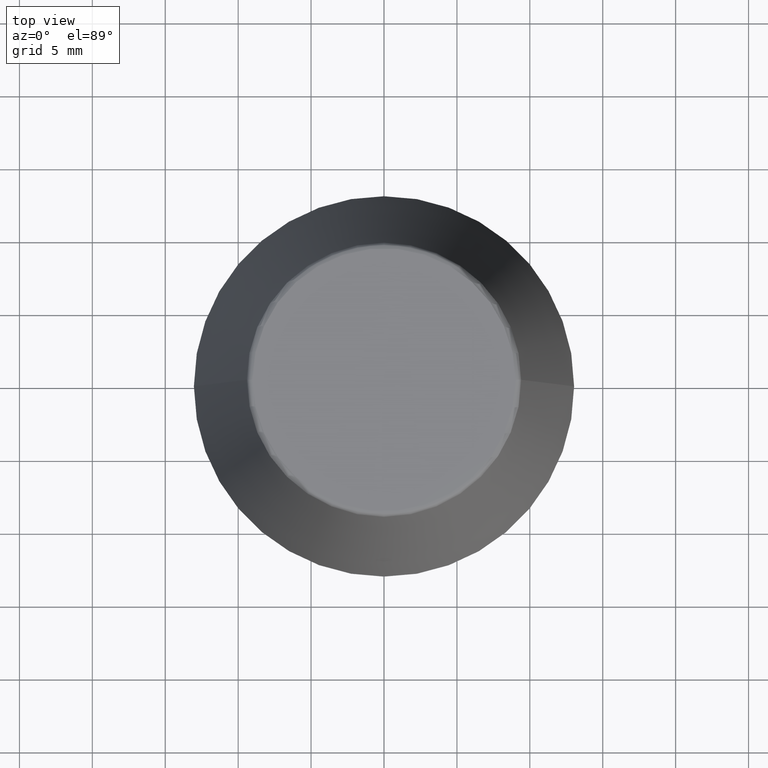
[diagram: clean part render]
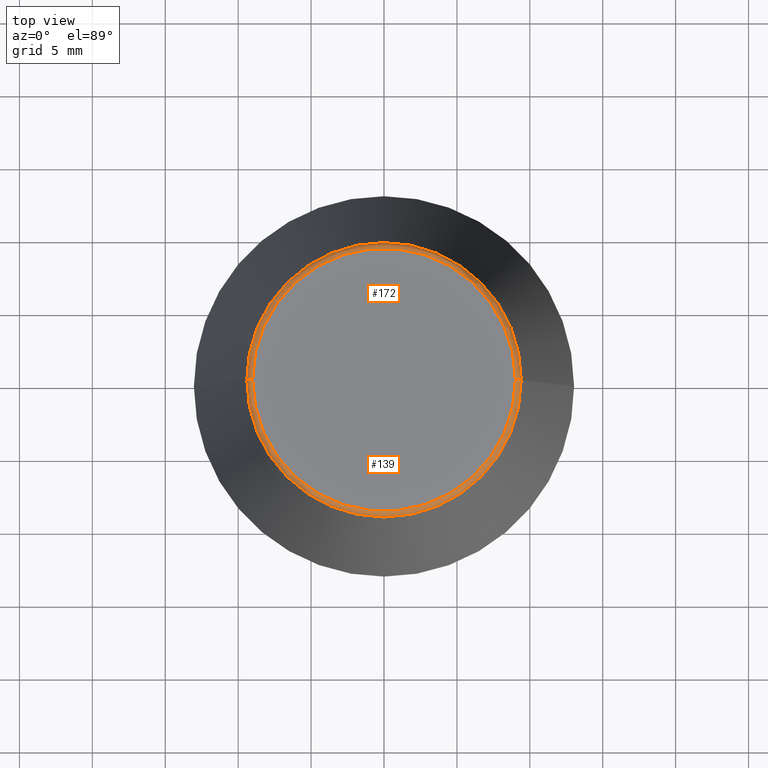
[diagram: same view with one multi-face feature highlighted, each face labeled with its STEP entity id]
A machine part, top view. The highlighted faces form ONE feature: a constant-radius fillet chain: 2 tangent blend faces with common blend radius 0.4 mm. The faces share edges in the B-rep.
Their STEP definitions:
[1] entity #172 (Torus):
#50 = ORIENTED_EDGE ( 'NONE', *, *, #319, .F. ) ;
#54 = CIRCLE ( 'NONE', #121, 0.4000000000000010200 ) ;
#59 = DIRECTION ( 'NONE',  ( -0.0000000000000000000, -0.0000000000000000000, 1.000000000000000000 ) ) ;
#61 = FACE_OUTER_BOUND ( 'NONE', #243, .T. ) ;
#63 = DIRECTION ( 'NONE',  ( 1.000000000000000000, 0.0000000000000000000, 0.0000000000000000000 ) ) ;
#75 = CIRCLE ( 'NONE', #245, 9.012603057622234500 ) ;
#76 = VERTEX_POINT ( 'NONE', #371 ) ;
#85 = ORIENTED_EDGE ( 'NONE', *, *, #282, .T. ) ;
#88 = CARTESIAN_POINT ( 'NONE',  ( 0.0000000000000000000, 0.0000000000000000000, 34.00000000000000000 ) ) ;
#95 = DIRECTION ( 'NONE',  ( -1.000000000000000000, 1.224646799147353200E-016, 0.0000000000000000000 ) ) ;
#108 = CARTESIAN_POINT ( 'NONE',  ( -9.408710285118862900, 0.0000000000000000000, 33.65566924038402900 ) ) ;
#109 = ORIENTED_EDGE ( 'NONE', *, *, #336, .T. ) ;
#113 = CARTESIAN_POINT ( 'NONE',  ( 9.012603057622234500, 0.0000000000000000000, 33.60000000000000100 ) ) ;
#115 = AXIS2_PLACEMENT_3D ( 'NONE', #113, #385, #185 ) ;
#121 = AXIS2_PLACEMENT_3D ( 'NONE', #189, #349, #95 ) ;
#124 = CARTESIAN_POINT ( 'NONE',  ( -9.012603057622234500, 1.127980121063915600E-015, 34.00000000000000000 ) ) ;
#138 = CARTESIAN_POINT ( 'NONE',  ( 0.0000000000000000000, 0.0000000000000000000, 33.65566924038402900 ) ) ;
#146 = AXIS2_PLACEMENT_3D ( 'NONE', #138, #205, #296 ) ;
#150 = CIRCLE ( 'NONE', #115, 0.3999999999999975800 ) ;
#154 = VERTEX_POINT ( 'NONE', #108 ) ;
#155 = CARTESIAN_POINT ( 'NONE',  ( 9.408710285118862900, 1.374377508408924700E-015, 33.65566924038402900 ) ) ;
#166 = DIRECTION ( 'NONE',  ( 1.000000000000000000, 0.0000000000000000000, 0.0000000000000000000 ) ) ;
#167 = DIRECTION ( 'NONE',  ( -0.0000000000000000000, -0.0000000000000000000, 1.000000000000000000 ) ) ;
#172 = ADVANCED_FACE ( 'NONE', ( #61 ), #200, .T. ) ;
#185 = DIRECTION ( 'NONE',  ( 0.0000000000000000000, 0.0000000000000000000, -1.000000000000000000 ) ) ;
#189 = CARTESIAN_POINT ( 'NONE',  ( -9.012603057622234500, 1.103725548650271700E-015, 33.60000000000000100 ) ) ;
#200 = TOROIDAL_SURFACE ( 'NONE', #242, 9.012603057622234500, 0.4000000000000009700 ) ;
#205 = DIRECTION ( 'NONE',  ( -0.0000000000000000000, -0.0000000000000000000, 1.000000000000000000 ) ) ;
#242 = AXIS2_PLACEMENT_3D ( 'NONE', #307, #167, #166 ) ;
#243 = EDGE_LOOP ( 'NONE', ( #85, #109, #50, #283 ) ) ;
#245 = AXIS2_PLACEMENT_3D ( 'NONE', #88, #59, #63 ) ;
#265 = VERTEX_POINT ( 'NONE', #155 ) ;
#282 = EDGE_CURVE ( 'NONE', #265, #154, #285, .T. ) ;
#283 = ORIENTED_EDGE ( 'NONE', *, *, #314, .F. ) ;
#285 = CIRCLE ( 'NONE', #146, 9.408710285118862900 ) ;
#296 = DIRECTION ( 'NONE',  ( 1.000000000000000000, 0.0000000000000000000, 0.0000000000000000000 ) ) ;
#307 = CARTESIAN_POINT ( 'NONE',  ( 0.0000000000000000000, 0.0000000000000000000, 33.60000000000000100 ) ) ;
#314 = EDGE_CURVE ( 'NONE', #265, #76, #150, .T. ) ;
#319 = EDGE_CURVE ( 'NONE', #76, #325, #75, .T. ) ;
#325 = VERTEX_POINT ( 'NONE', #124 ) ;
#336 = EDGE_CURVE ( 'NONE', #154, #325, #54, .T. ) ;
#349 = DIRECTION ( 'NONE',  ( 1.224646799147353200E-016, 1.000000000000000000, 0.0000000000000000000 ) ) ;
#371 = CARTESIAN_POINT ( 'NONE',  ( 9.012603057622234500, 0.0000000000000000000, 34.00000000000000000 ) ) ;
#385 = DIRECTION ( 'NONE',  ( 0.0000000000000000000, -1.000000000000000000, 0.0000000000000000000 ) ) ;
[2] entity #139 (Torus):
#17 = CIRCLE ( 'NONE', #80, 9.012603057622234500 ) ;
#54 = CIRCLE ( 'NONE', #121, 0.4000000000000010200 ) ;
#69 = DIRECTION ( 'NONE',  ( 1.000000000000000000, 0.0000000000000000000, 0.0000000000000000000 ) ) ;
#76 = VERTEX_POINT ( 'NONE', #371 ) ;
#80 = AXIS2_PLACEMENT_3D ( 'NONE', #328, #220, #101 ) ;
#82 = ORIENTED_EDGE ( 'NONE', *, *, #238, .F. ) ;
#86 = CIRCLE ( 'NONE', #266, 9.408710285118862900 ) ;
#95 = DIRECTION ( 'NONE',  ( -1.000000000000000000, 1.224646799147353200E-016, 0.0000000000000000000 ) ) ;
#101 = DIRECTION ( 'NONE',  ( 1.000000000000000000, 0.0000000000000000000, 0.0000000000000000000 ) ) ;
#108 = CARTESIAN_POINT ( 'NONE',  ( -9.408710285118862900, 0.0000000000000000000, 33.65566924038402900 ) ) ;
#113 = CARTESIAN_POINT ( 'NONE',  ( 9.012603057622234500, 0.0000000000000000000, 33.60000000000000100 ) ) ;
#115 = AXIS2_PLACEMENT_3D ( 'NONE', #113, #385, #185 ) ;
#119 = TOROIDAL_SURFACE ( 'NONE', #324, 9.012603057622234500, 0.4000000000000009700 ) ;
#121 = AXIS2_PLACEMENT_3D ( 'NONE', #189, #349, #95 ) ;
#124 = CARTESIAN_POINT ( 'NONE',  ( -9.012603057622234500, 1.127980121063915600E-015, 34.00000000000000000 ) ) ;
#139 = ADVANCED_FACE ( 'NONE', ( #353 ), #119, .T. ) ;
#150 = CIRCLE ( 'NONE', #115, 0.3999999999999975800 ) ;
#154 = VERTEX_POINT ( 'NONE', #108 ) ;
#155 = CARTESIAN_POINT ( 'NONE',  ( 9.408710285118862900, 1.374377508408924700E-015, 33.65566924038402900 ) ) ;
#159 = CARTESIAN_POINT ( 'NONE',  ( 0.0000000000000000000, 0.0000000000000000000, 33.65566924038402900 ) ) ;
#185 = DIRECTION ( 'NONE',  ( 0.0000000000000000000, 0.0000000000000000000, -1.000000000000000000 ) ) ;
#189 = CARTESIAN_POINT ( 'NONE',  ( -9.012603057622234500, 1.103725548650271700E-015, 33.60000000000000100 ) ) ;
#199 = DIRECTION ( 'NONE',  ( -0.0000000000000000000, -0.0000000000000000000, 1.000000000000000000 ) ) ;
#217 = EDGE_CURVE ( 'NONE', #154, #265, #86, .T. ) ;
#220 = DIRECTION ( 'NONE',  ( -0.0000000000000000000, -0.0000000000000000000, 1.000000000000000000 ) ) ;
#225 = ORIENTED_EDGE ( 'NONE', *, *, #336, .F. ) ;
#230 = ORIENTED_EDGE ( 'NONE', *, *, #314, .T. ) ;
#238 = EDGE_CURVE ( 'NONE', #325, #76, #17, .T. ) ;
#265 = VERTEX_POINT ( 'NONE', #155 ) ;
#266 = AXIS2_PLACEMENT_3D ( 'NONE', #159, #361, #69 ) ;
#289 = ORIENTED_EDGE ( 'NONE', *, *, #217, .T. ) ;
#297 = DIRECTION ( 'NONE',  ( 1.000000000000000000, 0.0000000000000000000, 0.0000000000000000000 ) ) ;
#310 = EDGE_LOOP ( 'NONE', ( #225, #289, #230, #82 ) ) ;
#314 = EDGE_CURVE ( 'NONE', #265, #76, #150, .T. ) ;
#324 = AXIS2_PLACEMENT_3D ( 'NONE', #333, #199, #297 ) ;
#325 = VERTEX_POINT ( 'NONE', #124 ) ;
#328 = CARTESIAN_POINT ( 'NONE',  ( 0.0000000000000000000, 0.0000000000000000000, 34.00000000000000000 ) ) ;
#333 = CARTESIAN_POINT ( 'NONE',  ( 0.0000000000000000000, 0.0000000000000000000, 33.60000000000000100 ) ) ;
#336 = EDGE_CURVE ( 'NONE', #154, #325, #54, .T. ) ;
#349 = DIRECTION ( 'NONE',  ( 1.224646799147353200E-016, 1.000000000000000000, 0.0000000000000000000 ) ) ;
#353 = FACE_OUTER_BOUND ( 'NONE', #310, .T. ) ;
#361 = DIRECTION ( 'NONE',  ( -0.0000000000000000000, -0.0000000000000000000, 1.000000000000000000 ) ) ;
#371 = CARTESIAN_POINT ( 'NONE',  ( 9.012603057622234500, 0.0000000000000000000, 34.00000000000000000 ) ) ;
#385 = DIRECTION ( 'NONE',  ( 0.0000000000000000000, -1.000000000000000000, 0.0000000000000000000 ) ) ;